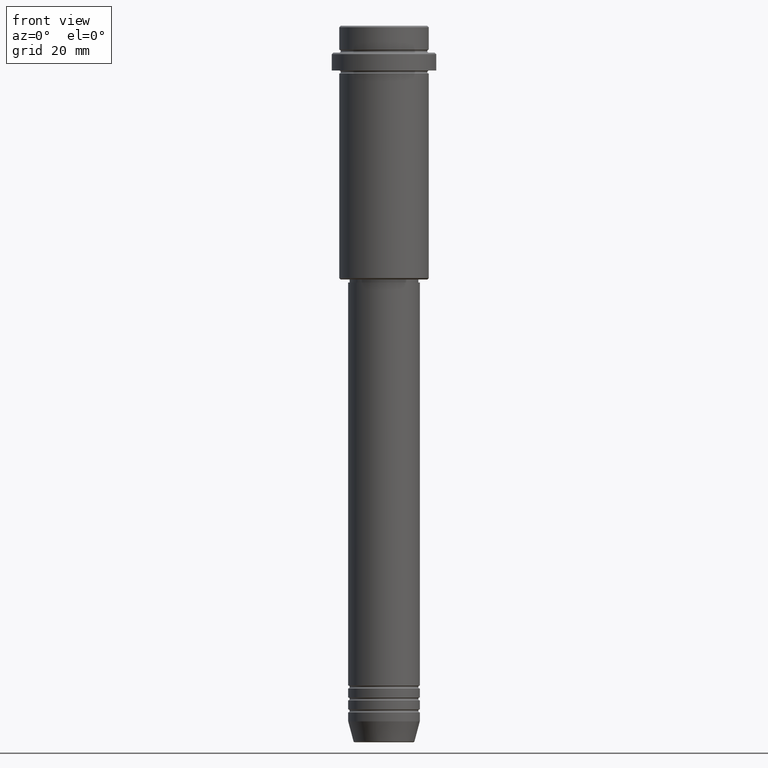
[diagram: clean part render]
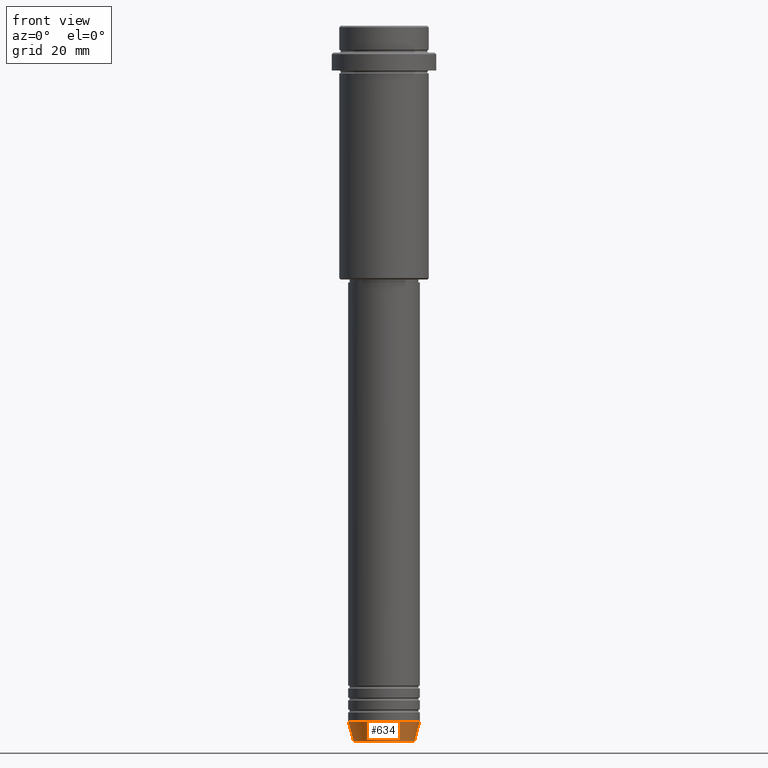
[diagram: same view with one face highlighted and labeled with its STEP entity id]
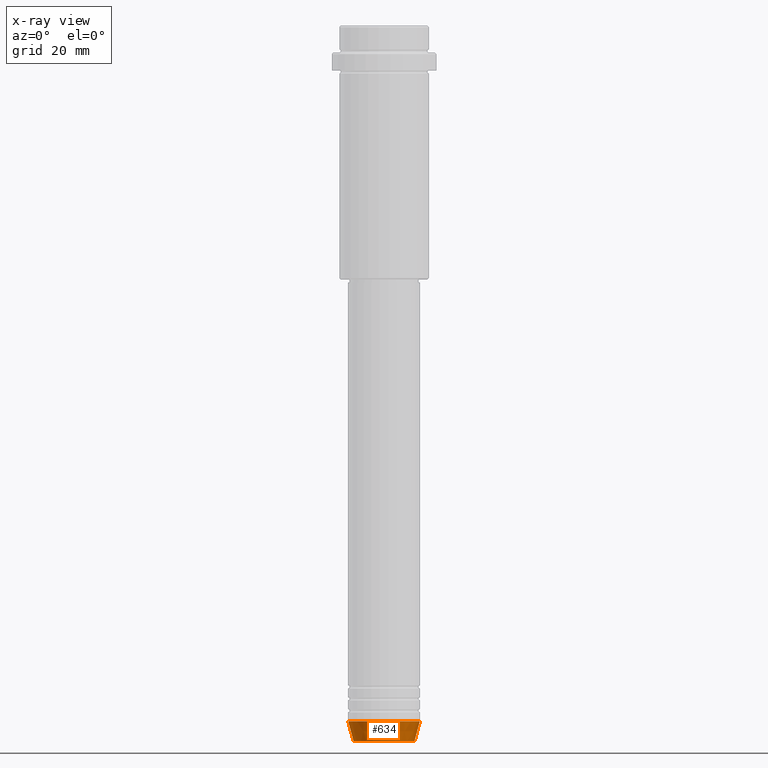
[diagram: x-ray of the same camera — body ghosted, the highlighted face saturated]
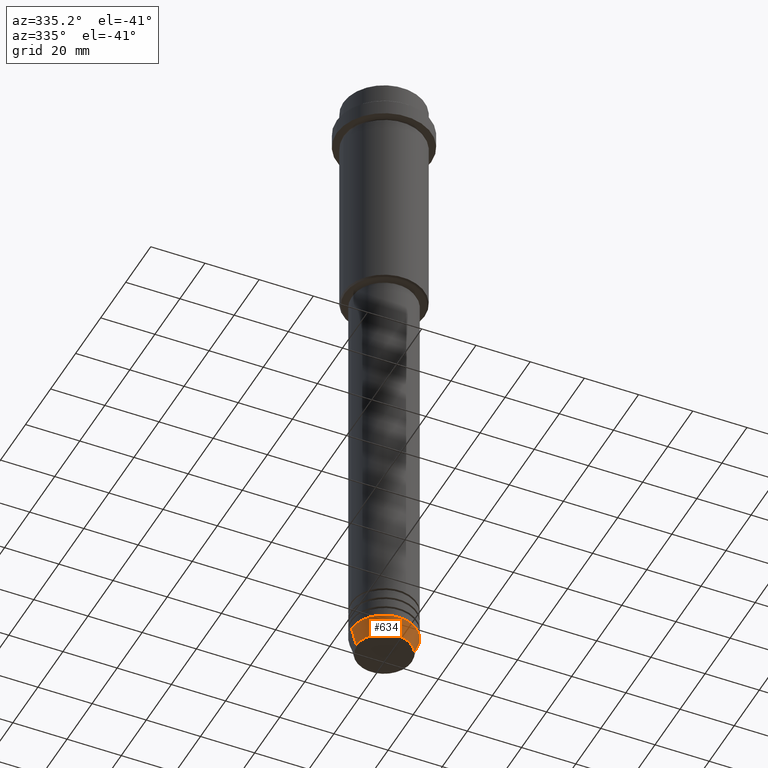
[diagram: same view with one face highlighted and labeled with its STEP entity id]
A machine part, front view. The second image highlights one B-rep face of the part: STEP entity #634.
The next image is the same camera in x-ray: the body ghosted, the highlighted face saturated — about 0% of this face is hidden behind the body in this view.
A second angle (auxiliary view) of the same face is appended — the face is thin or edge-on in the first view.
In plain terms, the highlighted conical surface has half-angle 15 deg.
Its self-contained STEP definition (entity closure, byte-faithful):
#9 = DIRECTION ( 'NONE',  ( 1.000000000000000000, 0.000000000000000000, 0.000000000000000000 ) ) ;
#76 = EDGE_CURVE ( 'NONE', #303, #379, #436, .T. ) ;
#97 = DIRECTION ( 'NONE',  ( 1.000000000000000000, 0.000000000000000000, 0.000000000000000000 ) ) ;
#204 = DIRECTION ( 'NONE',  ( -0.000000000000000000, -0.000000000000000000, 1.000000000000000000 ) ) ;
#216 = VECTOR ( 'NONE', #1382, 1000.000000000000000 ) ;
#266 = CARTESIAN_POINT ( 'NONE',  ( 12.00000000000000000, 0.000000000000000000, -232.9999999999999716 ) ) ;
#302 = CARTESIAN_POINT ( 'NONE',  ( 0.000000000000000000, 0.000000000000000000, -232.9999999999999716 ) ) ;
#303 = VERTEX_POINT ( 'NONE', #824 ) ;
#309 = DIRECTION ( 'NONE',  ( -0.000000000000000000, -0.000000000000000000, 1.000000000000000000 ) ) ;
#312 = VECTOR ( 'NONE', #1056, 1000.000000000000000 ) ;
#320 = ORIENTED_EDGE ( 'NONE', *, *, #76, .F. ) ;
#379 = VERTEX_POINT ( 'NONE', #598 ) ;
#386 = EDGE_LOOP ( 'NONE', ( #320, #1111, #723, #1302 ) ) ;
#388 = CARTESIAN_POINT ( 'NONE',  ( 10.22365507213719127, 0.000000000000000000, -239.6294095225512422 ) ) ;
#412 = CARTESIAN_POINT ( 'NONE',  ( 12.00000000000000000, 0.000000000000000000, -232.9999999999999716 ) ) ;
#414 = DIRECTION ( 'NONE',  ( 1.000000000000000000, 0.000000000000000000, 0.000000000000000000 ) ) ;
#436 = LINE ( 'NONE', #760, #216 ) ;
#439 = DIRECTION ( 'NONE',  ( -0.000000000000000000, -0.000000000000000000, 1.000000000000000000 ) ) ;
#598 = CARTESIAN_POINT ( 'NONE',  ( -12.00000000000000000, 1.469576158976823947E-15, -232.9999999999999716 ) ) ;
#634 = ADVANCED_FACE ( 'NONE', ( #1400 ), #1091, .T. ) ;
#640 = EDGE_CURVE ( 'NONE', #379, #1314, #692, .T. ) ;
#676 = AXIS2_PLACEMENT_3D ( 'NONE', #775, #439, #9 ) ;
#692 = CIRCLE ( 'NONE', #1164, 12.00000000000000000 ) ;
#723 = ORIENTED_EDGE ( 'NONE', *, *, #1004, .T. ) ;
#760 = CARTESIAN_POINT ( 'NONE',  ( -12.00000000000000000, 1.469576158976823947E-15, -232.9999999999999716 ) ) ;
#775 = CARTESIAN_POINT ( 'NONE',  ( 0.000000000000000000, 0.000000000000000000, -239.6294095225512422 ) ) ;
#824 = CARTESIAN_POINT ( 'NONE',  ( -10.22365507213719127, 1.360806402472382744E-15, -239.6294095225512422 ) ) ;
#856 = AXIS2_PLACEMENT_3D ( 'NONE', #302, #309, #414 ) ;
#899 = VERTEX_POINT ( 'NONE', #388 ) ;
#909 = CIRCLE ( 'NONE', #676, 10.22365507213719127 ) ;
#1004 = EDGE_CURVE ( 'NONE', #899, #1314, #1202, .T. ) ;
#1056 = DIRECTION ( 'NONE',  ( 0.2588190451025213501, 0.000000000000000000, 0.9659258262890680902 ) ) ;
#1091 = CONICAL_SURFACE ( 'NONE', #856, 12.00000000000000000, 0.2617993877991500740 ) ;
#1109 = EDGE_CURVE ( 'NONE', #303, #899, #909, .T. ) ;
#1111 = ORIENTED_EDGE ( 'NONE', *, *, #1109, .T. ) ;
#1164 = AXIS2_PLACEMENT_3D ( 'NONE', #1192, #204, #97 ) ;
#1192 = CARTESIAN_POINT ( 'NONE',  ( 0.000000000000000000, 0.000000000000000000, -232.9999999999999716 ) ) ;
#1202 = LINE ( 'NONE', #412, #312 ) ;
#1302 = ORIENTED_EDGE ( 'NONE', *, *, #640, .F. ) ;
#1314 = VERTEX_POINT ( 'NONE', #266 ) ;
#1382 = DIRECTION ( 'NONE',  ( -0.2588190451025213501, 3.169619151431772337E-17, 0.9659258262890680902 ) ) ;
#1400 = FACE_OUTER_BOUND ( 'NONE', #386, .T. ) ;